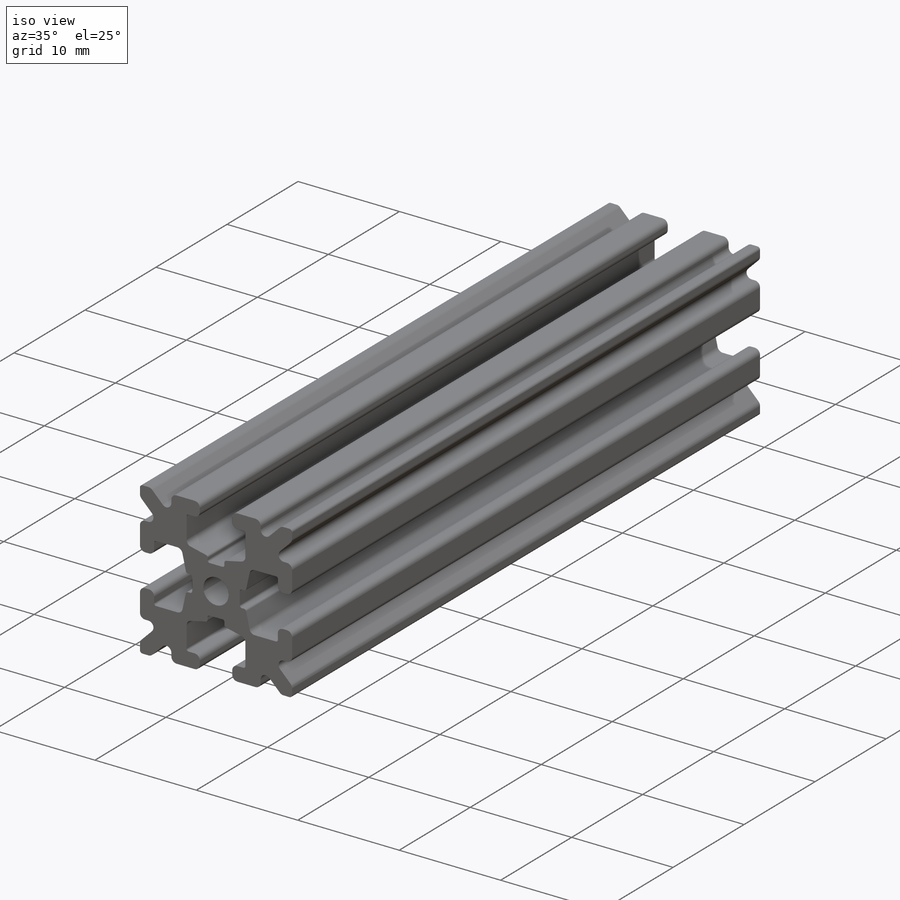
[diagram: iso view]
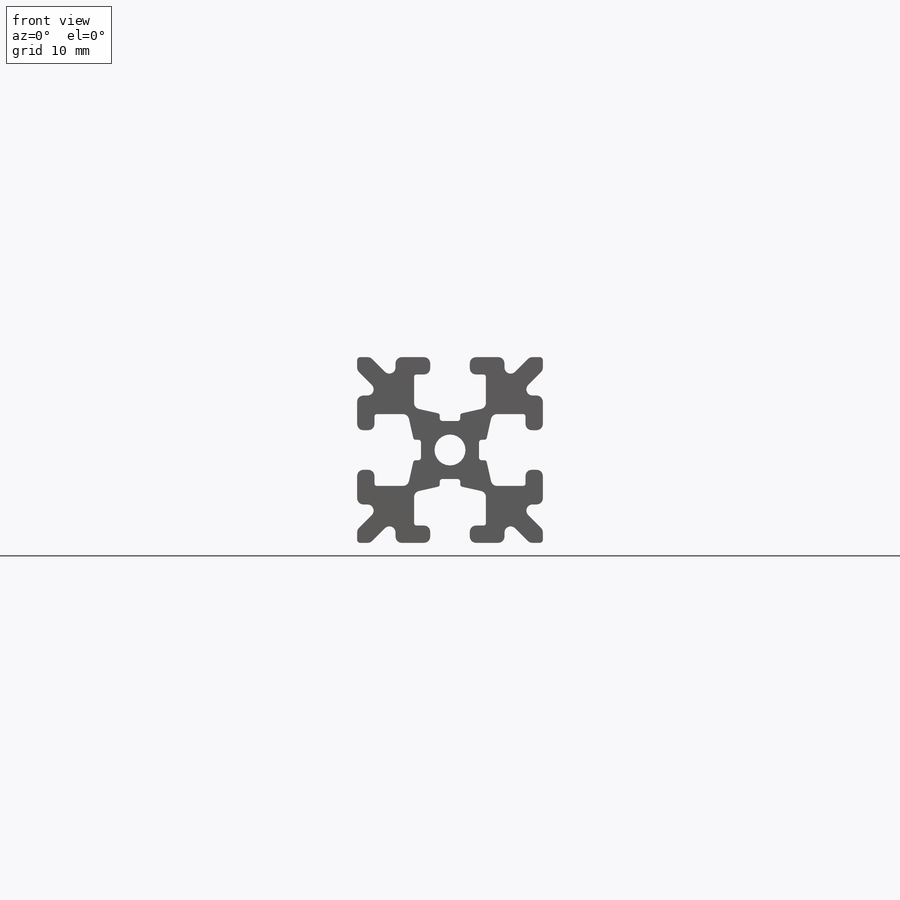
[diagram: front view]
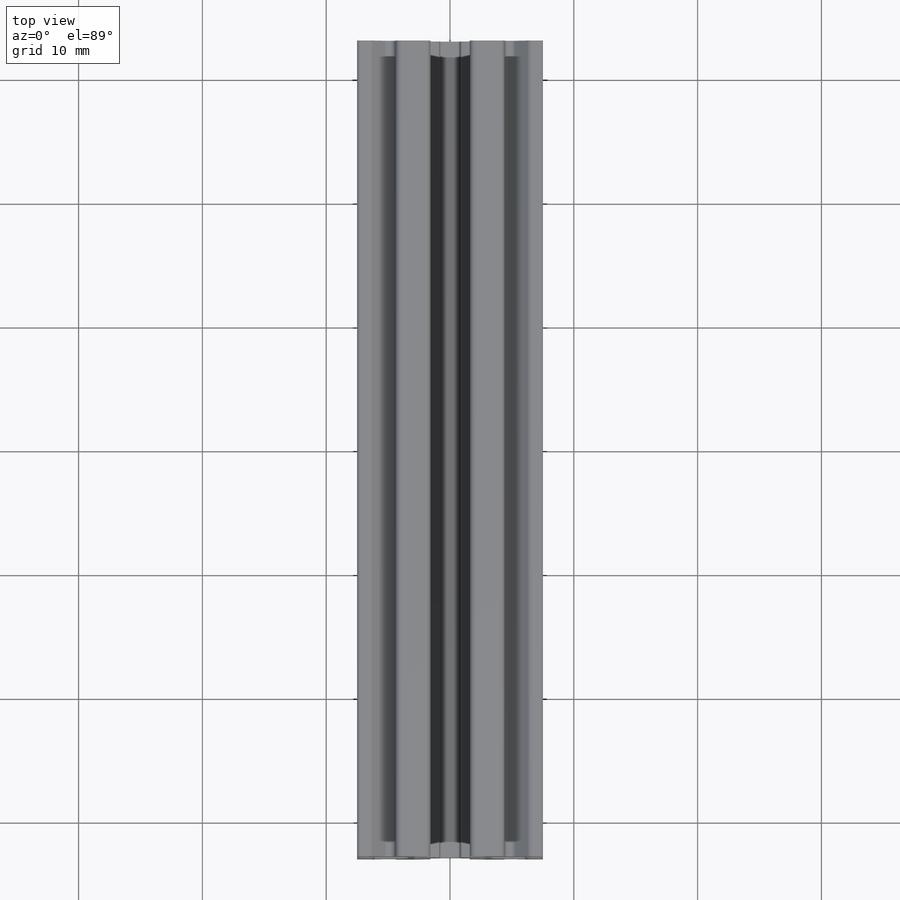
[diagram: top view]
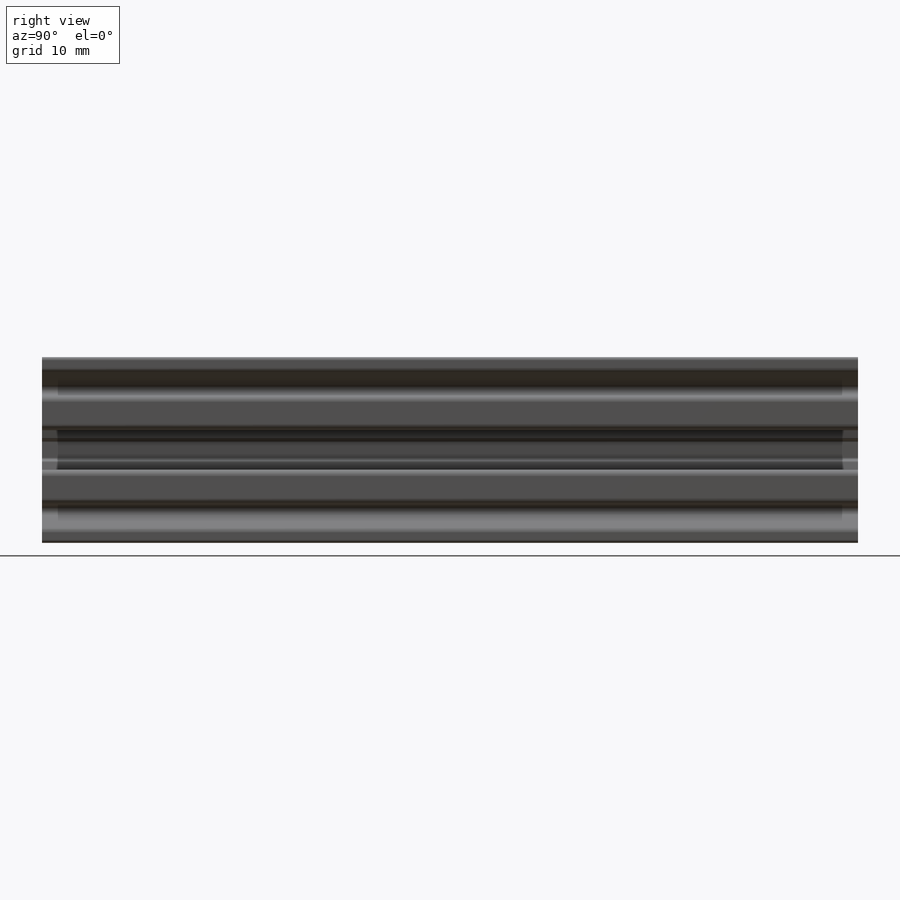
[diagram: right view]
SOLIDWORKS PART (.sldprt)
format: sldprt  version: not decoded by parser v0  size: 750,080 bytes
history: native  units: mm
features: fillet x7, sketch x5, cut_extrude x4, material x1, extrude x1 (+13 scaffold rows collapsed)
feature tree (31):
  scaffold x13  (default folders/planes/origin — collapsed)
  material  "Material <not specified>"
  sketch  "Sketch1"  dims[D2=2.5mm D1=15.0mm]
  extrude  "Boss-Extrude1"  Depth=88mm
  fillet  "Fillet1"  Radius=0.25mm
  sketch  "Sketch2"  dims[D1=3.2mm D2=5.8mm D3=1.4mm D4=2.7mm D5=~1.131371mm]
  cut_extrude  "Cut-Extrude1"  [1 undecoded]
  sketch  "Sketch4"  dims[D1=1.5mm]
  cut_extrude  "Cut-Extrude3"  [1 undecoded]
  fillet  "Fillet3"  Radius=0.5mm
  fillet  "Fillet4"  Radius=0.5mm
  fillet  "Fillet5"  Radius=3mm
  fillet  "Fillet6"  Radius=0.2mm
  sketch  "Sketch5"  dims[c1.D1=1.5mm c1.D2=1.5mm c2.D1=1.5mm c2.D2=1.5mm c2.D3=1.5mm]
  cut_extrude  "Cut-Extrude4"  [1 undecoded]
  fillet  "Fillet8"  Radius=0.5mm
  sketch  "Sketch6"  dims[c1.D3=~4.252419mm c1.D4=1.0mm c1.D1=1.7mm c1.D2=~0.24097mm c2.D2=180.0deg c2.D3=~0.77621mm c2.D1=1.651mm c3.D3=0.55mm]
  cut_extrude  "Cut-Extrude5"  [1 undecoded]
  fillet  "Fillet10"  Radius=0.2mm
decode coverage: 13 of 17 modeling features carry decoded parameters
note: ~ marks probable driven/reference dimensions
note: 4 parameter values undecoded
summary: no parameter record found for 4 features
note: suppression state not decoded; provenance and decode notes live in map.json
